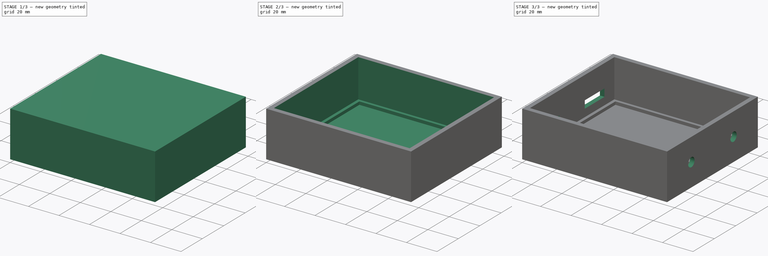
[diagram: build sequence overview — one tinted view per stage of 3, left to right]
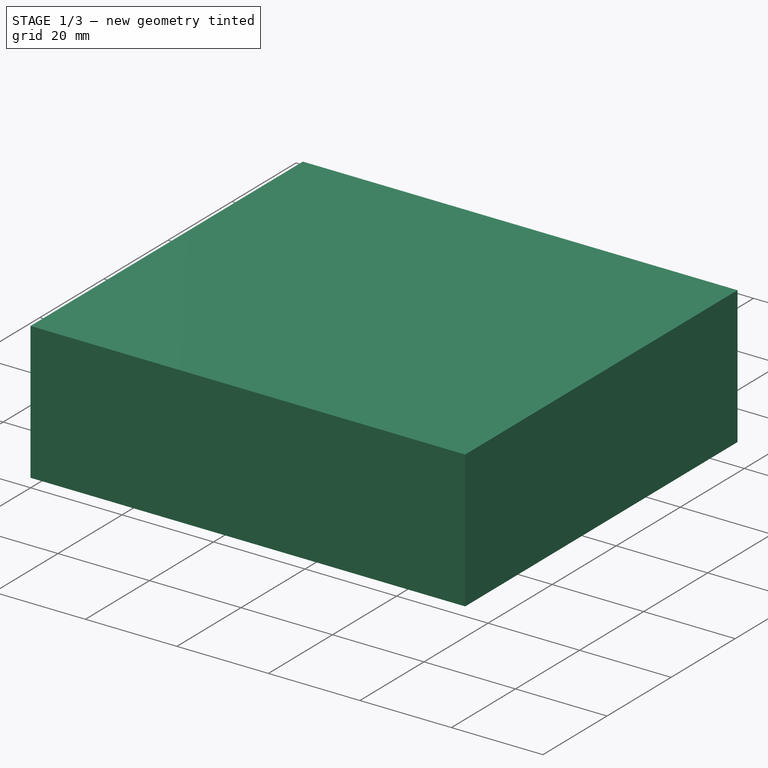
[diagram: stage 1 of 3 — iso view after this stage's code; geometry added in this stage tinted green]
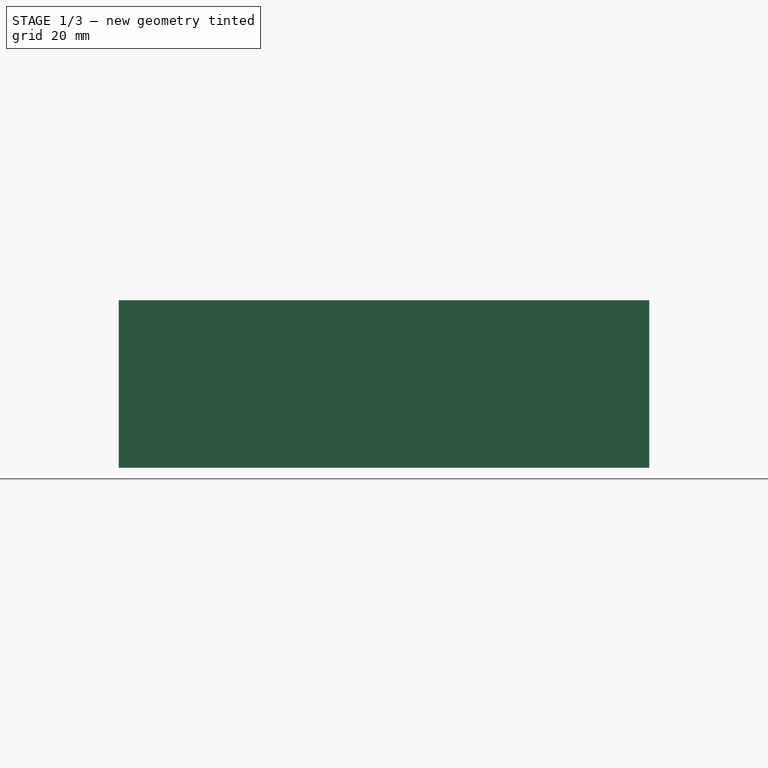
[diagram: stage 1 of 3 — front view after this stage's code; geometry added in this stage tinted green]
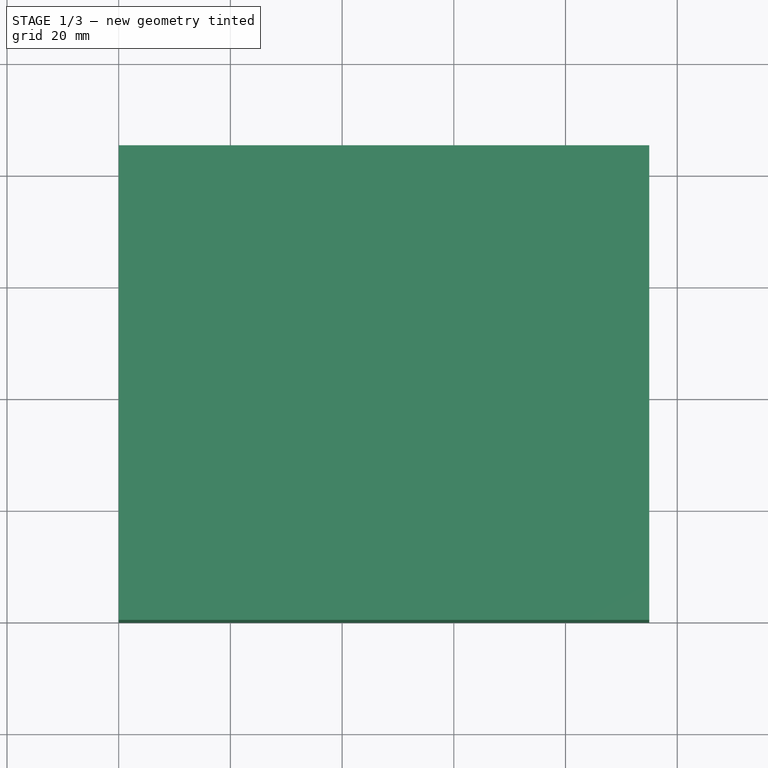
[diagram: stage 1 of 3 — top view after this stage's code; geometry added in this stage tinted green]
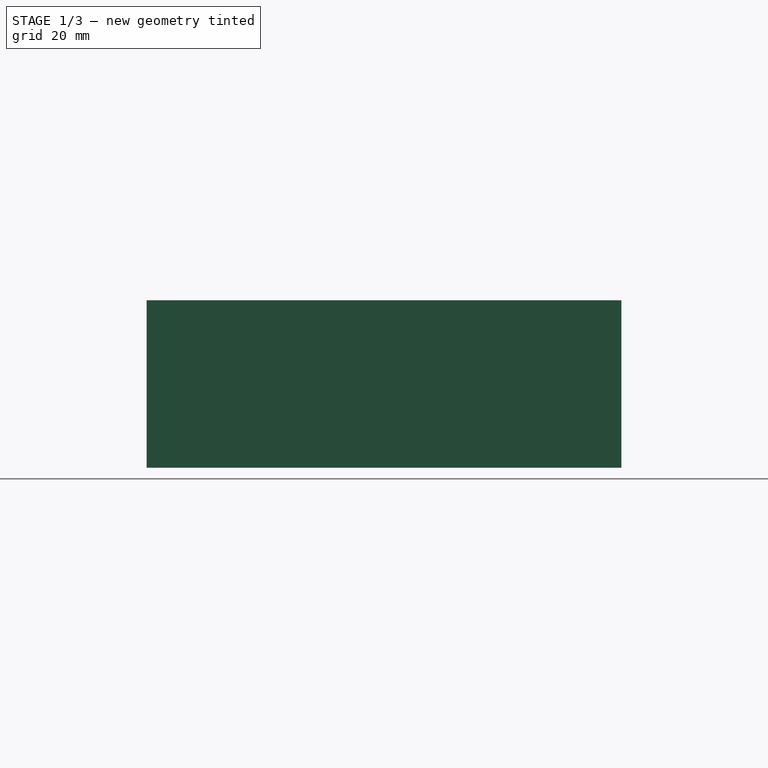
[diagram: stage 1 of 3 — right view after this stage's code; geometry added in this stage tinted green]
FCSTD DOCUMENT  (FreeCAD 0.19R24267 +99 (Git))
Label: boitier encodeurs
License: All rights reserved
LicenseURL: http://en.wikipedia.org/wiki/All_rights_reserved
objects: Sketcher::SketchObject×5, PartDesign::Pocket×3, Part::Extrusion×1, PartDesign::FeatureBase×1, PartDesign::Hole×1, PartDesign::Body×1
note: 16 computed .brp shape members not serialized (recipe doc carries the construction recipe); baked Part::Feature solids carry a one-line shape summary decoded from their .brp

FEATURE [Sketcher::SketchObject] Sketch
  FullyConstrained = true
  sketch-geometry (4):
    g0: LineSegment StartX=0 StartY=0 StartZ=0 EndX=95 EndY=0 EndZ=0
    g1: LineSegment StartX=95 StartY=0 StartZ=0 EndX=95 EndY=85 EndZ=0
    g2: LineSegment StartX=95 StartY=85 StartZ=0 EndX=0 EndY=85 EndZ=0
    g3: LineSegment StartX=0 StartY=85 StartZ=0 EndX=0 EndY=0 EndZ=0
  constraints (11):
    c: Coincident(g0,g1)
    c: Coincident(g1,g2)
    c: Coincident(g2,g3)
    c: Coincident(g3,g0)
    c: Horizontal(g0)
    c: Horizontal(g2)
    c: Vertical(g1)
    c: Vertical(g3)
    c: Coincident(g0,g-1)
    c: DistanceY(g1,g1) = 85
    c: DistanceX(g0,g0) = 95
FEATURE [Part::Extrusion] Extrude
  Base = -> Sketch
  Dir = (0,0,1)
  DirMode = 2
  FaceMakerClass = Part::FaceMakerBullseye
  LengthFwd = 30
  LengthRev = 0
  Solid = true
  Symmetric = false
FEATURE [PartDesign::FeatureBase] BaseFeature
  BaseFeature = -> Extrude
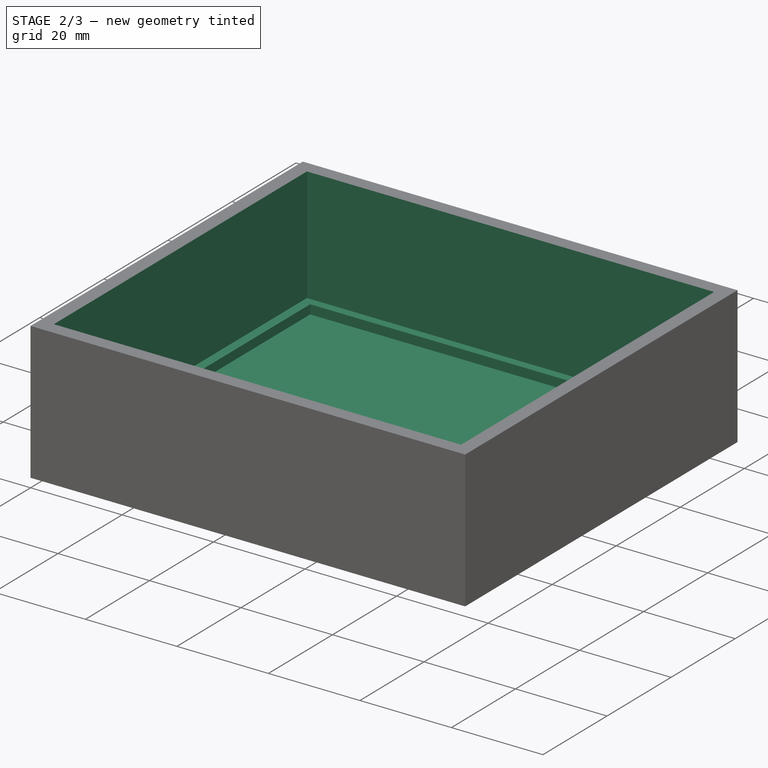
[diagram: stage 2 of 3 — iso view after this stage's code; geometry added in this stage tinted green]
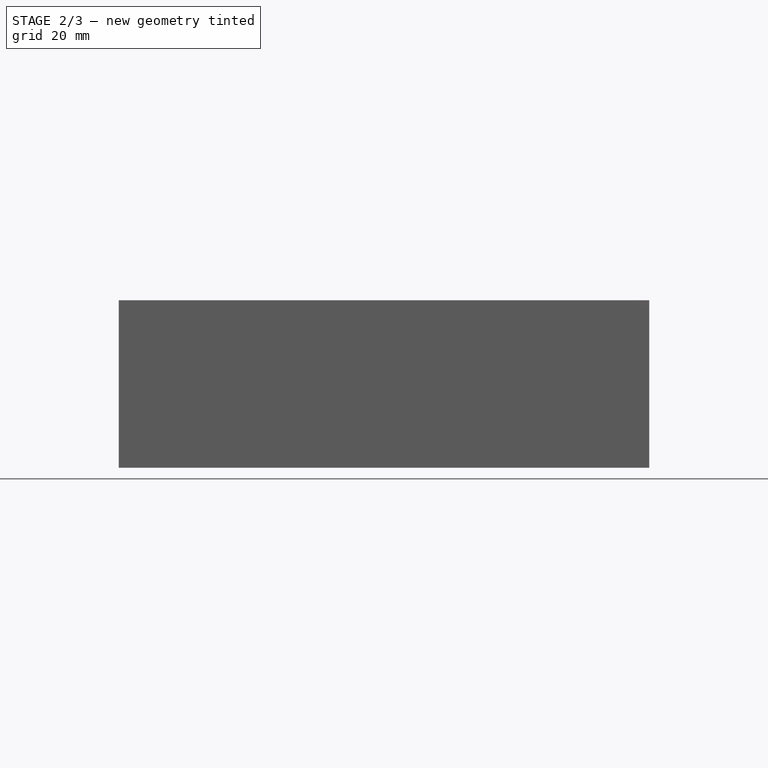
[diagram: stage 2 of 3 — front view after this stage's code; geometry added in this stage tinted green]
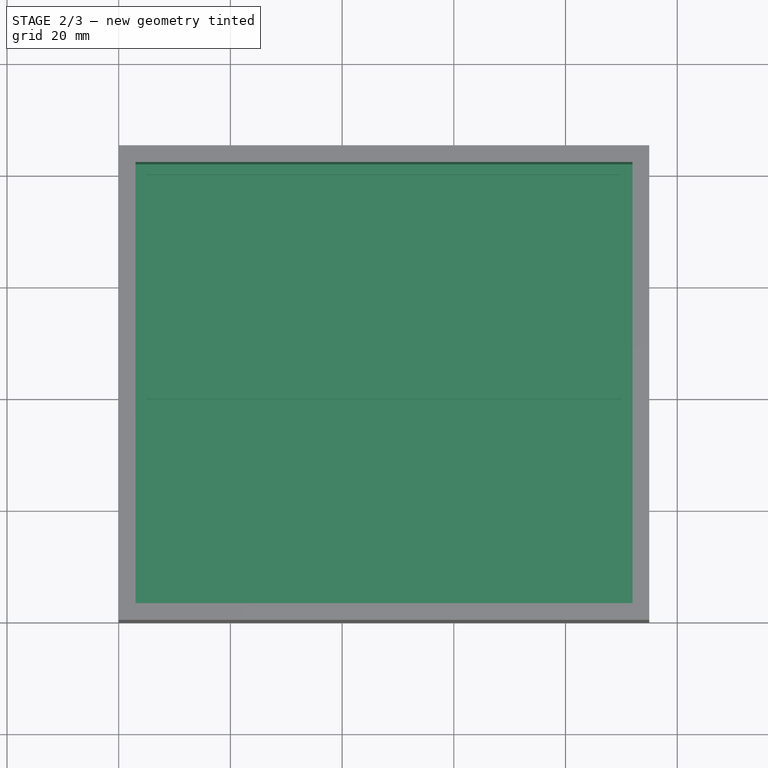
[diagram: stage 2 of 3 — top view after this stage's code; geometry added in this stage tinted green]
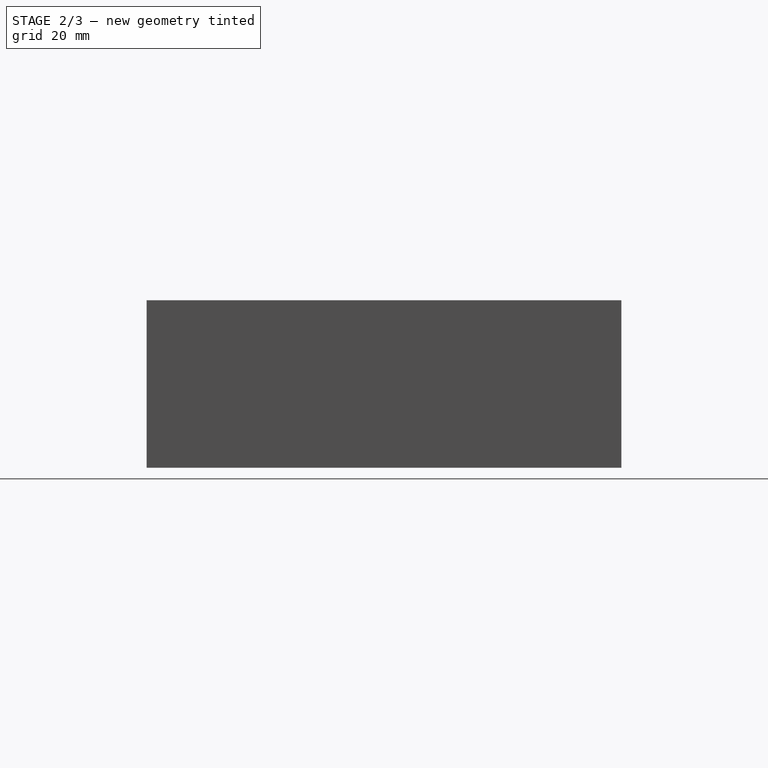
[diagram: stage 2 of 3 — right view after this stage's code; geometry added in this stage tinted green]
FEATURE [Sketcher::SketchObject] Sketch001
  FullyConstrained = false
  MapMode = 5
  Placement = pos=(0,0,30) rot=(0,0,1;0rad)
  Support = -> [BaseFeature]
  sketch-geometry (8):
    g0: LineSegment StartX=5 StartY=80.1449 StartZ=0 EndX=90 EndY=80.1449 EndZ=0
    g1: LineSegment StartX=90 StartY=80.1449 StartZ=0 EndX=90 EndY=45.1449 EndZ=0
    g2: LineSegment StartX=90 StartY=45.1449 StartZ=0 EndX=5 EndY=45.1449 EndZ=0
    g3: LineSegment StartX=5 StartY=45.1449 StartZ=0 EndX=5 EndY=80.1449 EndZ=0
    g4: LineSegment StartX=5 StartY=5 StartZ=0 EndX=90 EndY=5 EndZ=0
    g5: LineSegment StartX=90 StartY=5 StartZ=0 EndX=90 EndY=40 EndZ=0
    g6: LineSegment StartX=90 StartY=40 StartZ=0 EndX=5 EndY=40 EndZ=0
    g7: LineSegment StartX=5 StartY=40 StartZ=0 EndX=5 EndY=5 EndZ=0
  constraints (20):
    c: Coincident(g0,g1)
    c: Coincident(g1,g2)
    c: Coincident(g2,g3)
    c: Coincident(g3,g0)
    c: Horizontal(g0)
    c: Horizontal(g2)
    c: Vertical(g1)
    c: Vertical(g3)
    c: Coincident(g4,g5)
    c: Coincident(g5,g6)
    c: Coincident(g6,g7)
    c: Coincident(g7,g4)
    c: Horizontal(g4)
    c: Horizontal(g6)
    c: Vertical(g5)
    c: Vertical(g7)
    c: DistanceY(g1,g1) = 35
    c: DistanceY(g5,g5) = 35
    c: DistanceX(g2,g2) = 85
    c: DistanceX(g4,g4) = 85
FEATURE [Sketcher::SketchObject] Sketch002
  FullyConstrained = true
  MapMode = 5
  Placement = pos=(0,0,30) rot=(0,0,1;0rad)
  Support = -> [BaseFeature]
  sketch-geometry (12):
    g0: LineSegment StartX=0 StartY=0 StartZ=0 EndX=95 EndY=0 EndZ=0
    g1: LineSegment StartX=95 StartY=0 StartZ=0 EndX=95 EndY=85 EndZ=0
    g2: LineSegment StartX=95 StartY=85 StartZ=0 EndX=0 EndY=85 EndZ=0
    g3: LineSegment StartX=0 StartY=85 StartZ=0 EndX=0 EndY=0 EndZ=0
    g4: LineSegment StartX=3 StartY=82 StartZ=0 EndX=92 EndY=82 EndZ=0
    g5: LineSegment StartX=92 StartY=82 StartZ=0 EndX=92 EndY=3 EndZ=0
    g6: LineSegment StartX=92 StartY=3 StartZ=0 EndX=3 EndY=3 EndZ=0
    g7: LineSegment StartX=3 StartY=3 StartZ=0 EndX=3 EndY=82 EndZ=0
    g8: LineSegment StartX=0 StartY=0 StartZ=0 EndX=3 EndY=0 EndZ=0
    g9: LineSegment StartX=3 StartY=0 StartZ=0 EndX=3 EndY=3 EndZ=0
    g10: LineSegment StartX=3 StartY=3 StartZ=0 EndX=0 EndY=3 EndZ=0
    g11: LineSegment StartX=0 StartY=3 StartZ=0 EndX=0 EndY=0 EndZ=0
  constraints (33):
    c: Coincident(g0,g1)
    c: Coincident(g1,g2)
    c: Coincident(g2,g3)
    c: Coincident(g3,g0)
    c: Horizontal(g0)
    c: Horizontal(g2)
    c: Vertical(g1)
    c: Vertical(g3)
    c: Coincident(g0,g-1)
    c: DistanceY(g1,g1) = 85
    c: DistanceX(g2,g2) = 95
    c: Coincident(g4,g5)
    c: Coincident(g5,g6)
    c: Coincident(g6,g7)
    c: Coincident(g7,g4)
    c: Horizontal(g4)
    c: Horizontal(g6)
    c: Vertical(g5)
    c: Vertical(g7)
    c: DistanceX(g4,g4) = 89
    c: DistanceY(g5,g5) = 79
    c: Coincident(g8,g9)
    c: Coincident(g9,g10)
    c: Coincident(g10,g11)
    c: Coincident(g11,g8)
    c: Horizontal(g8)
    c: Horizontal(g10)
    c: Vertical(g9)
    c: Vertical(g11)
    c: Coincident(g8,g0)
    c: Coincident(g9,g6)
    c: DistanceX(g10,g10) = 3
    c: DistanceY(g9,g9) = 3
FEATURE [PartDesign::Pocket] Pocket
  BaseFeature = -> BaseFeature
  Length = 25
  Length2 = 100
  Profile = -> Sketch002
  Type = 0
FEATURE [PartDesign::Pocket] Pocket001
  BaseFeature = -> Pocket
  Length = 27
  Length2 = 100
  Profile = -> Sketch001
  Type = 0
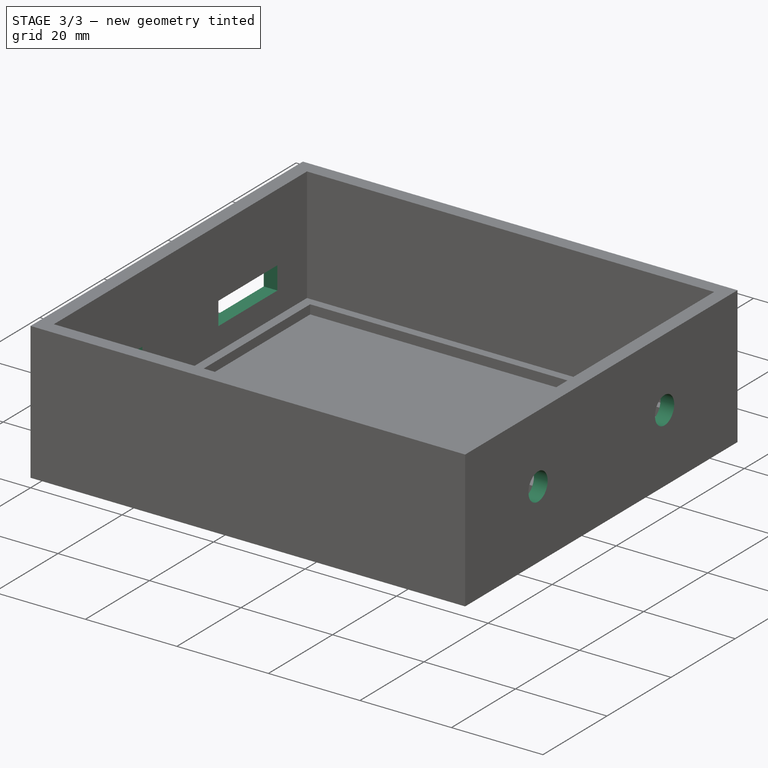
[diagram: stage 3 of 3 — iso view after this stage's code; geometry added in this stage tinted green]
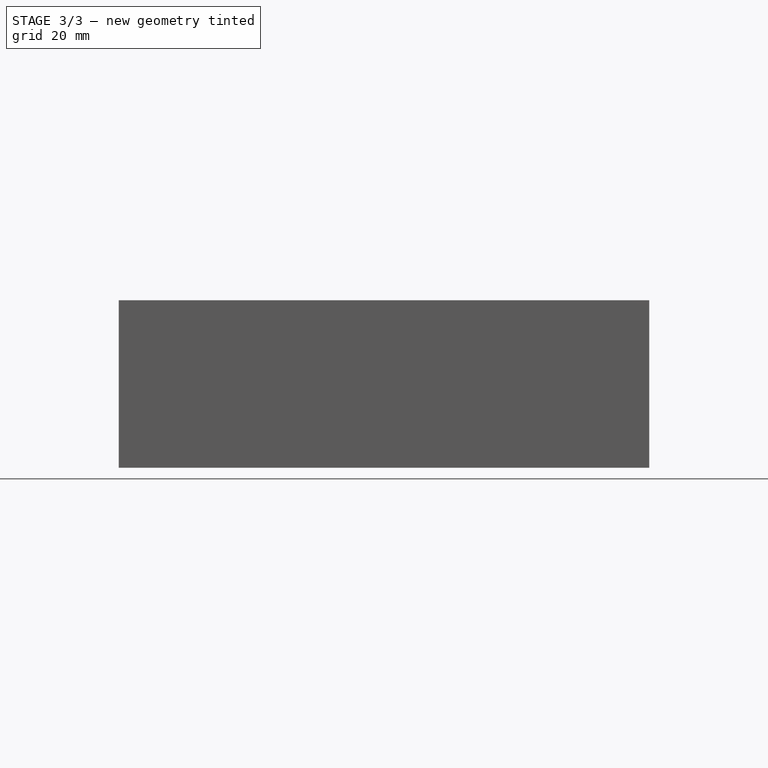
[diagram: stage 3 of 3 — front view after this stage's code; geometry added in this stage tinted green]
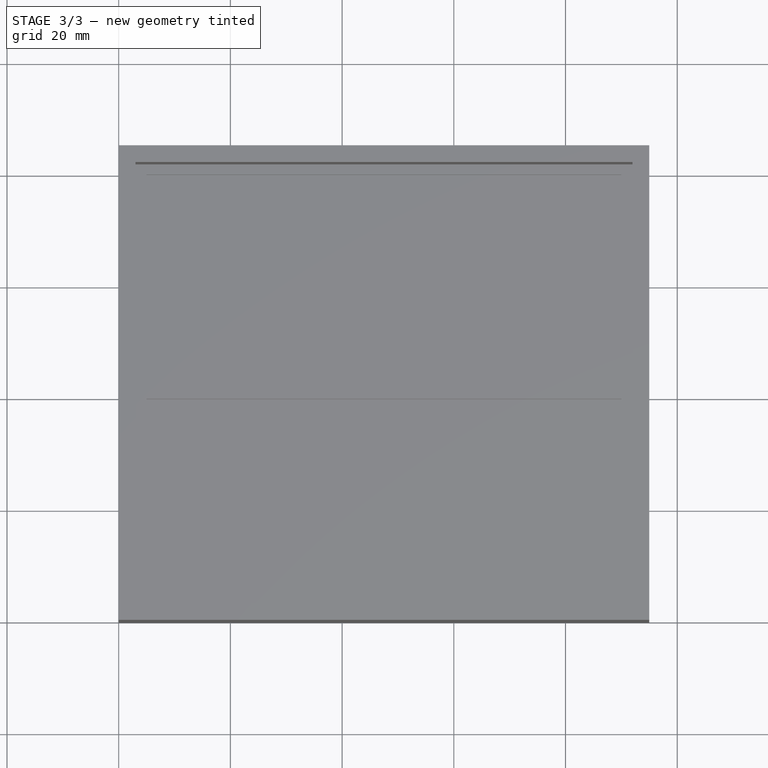
[diagram: stage 3 of 3 — top view after this stage's code; geometry added in this stage tinted green]
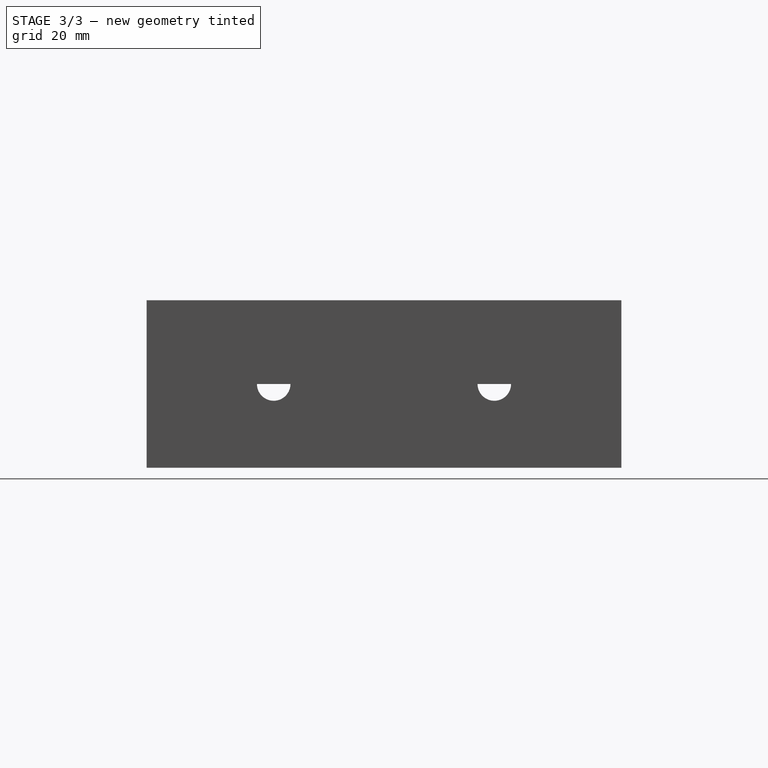
[diagram: stage 3 of 3 — right view after this stage's code; geometry added in this stage tinted green]
FEATURE [Sketcher::SketchObject] Sketch003
  FullyConstrained = true
  MapMode = 5
  Placement = pos=(95,0,0) rot=(0.57735,0.57735,0.57735;2.0944rad)
  Support = -> [Pocket001]
  sketch-geometry (9):
    g0: LineSegment StartX=0 StartY=0 StartZ=0 EndX=3 EndY=0 EndZ=0
    g1: LineSegment StartX=3 StartY=0 StartZ=0 EndX=22.75 EndY=0 EndZ=0
    g2: LineSegment StartX=0 StartY=0 StartZ=0 EndX=85 EndY=0 EndZ=0
    g3: LineSegment StartX=85 StartY=0 StartZ=0 EndX=82 EndY=0 EndZ=0
    g4: LineSegment StartX=82 StartY=0 StartZ=0 EndX=62.25 EndY=0 EndZ=0
    g5: LineSegment StartX=22.75 StartY=0 StartZ=0 EndX=22.75 EndY=15 EndZ=0
    g6: LineSegment StartX=62.25 StartY=0 StartZ=0 EndX=62.25 EndY=15 EndZ=0
    g7: Circle CenterX=22.75 CenterY=15 CenterZ=0 NormalX=0 NormalY=0 NormalZ=1 AngleXU=0 Radius=2
    g8: Circle CenterX=62.25 CenterY=15 CenterZ=0 NormalX=0 NormalY=0 NormalZ=1 AngleXU=0 Radius=2
  constraints (25):
    c: Coincident(g0,g-1)
    c: PointOnObject(g0,g-1)
    c: DistanceX(g0,g0) = 3
    c: Coincident(g1,g0)
    c: PointOnObject(g1,g-1)
    c: DistanceX(g1,g1) = 19.75
    c: Coincident(g2,g0)
    c: PointOnObject(g2,g-1)
    c: DistanceX(g2,g2) = 85
    c: Coincident(g3,g2)
    c: PointOnObject(g3,g2)
    c: DistanceX(g3,g3) = 3
    c: Coincident(g4,g3)
    c: PointOnObject(g4,g2)
    c: DistanceX(g4,g4) = 19.75
    c: Coincident(g5,g1)
    c: Vertical(g5)
    c: DistanceY(g5,g5) = 15
    c: Coincident(g6,g4)
    c: Vertical(g6)
    c: DistanceY(g6,g6) = 15
    c: Coincident(g7,g5)
    c: Radius(g7) = 2
    c: Coincident(g8,g6)
    c: Radius(g8) = 2
FEATURE [PartDesign::Hole] Hole
  BaseFeature = -> Pocket001
  Depth = 25
  DepthType = 0
  Diameter = 6
  DrillForDepth = false
  DrillPoint = 1
  DrillPointAngle = 118
  HoleCutCountersinkAngle = 90
  HoleCutCustomValues = false
  HoleCutDepth = 0
  HoleCutDiameter = 6.1
  HoleCutType = 0
  ModelActualThread = false
  Profile = -> Sketch003
  Tapered = false
  TaperedAngle = 90
  ThreadAngle = 0
  ThreadClass = 0
  ThreadCutOffInner = 0
  ThreadCutOffOuter = 0
  ThreadDirection = 0
  ThreadFit = 0
  ThreadPitch = 0
  ThreadSize = 0
  ThreadType = 0
  Threaded = false
FEATURE [Sketcher::SketchObject] Sketch004
  FullyConstrained = true
  MapMode = 5
  Placement = pos=(0,0,0) rot=(0.57735,-0.57735,-0.57735;2.0944rad)
  Support = -> [Hole]
  sketch-geometry (15):
    g0: LineSegment StartX=0 StartY=0 StartZ=0 EndX=-85 EndY=0 EndZ=0
    g1: LineSegment StartX=0 StartY=0 StartZ=0 EndX=-3 EndY=0 EndZ=0
    g2: LineSegment StartX=-85 StartY=0 StartZ=0 EndX=-82 EndY=0 EndZ=0
    g3: LineSegment StartX=-3 StartY=0 StartZ=0 EndX=-12.21 EndY=0 EndZ=0
    g4: LineSegment StartX=-82 StartY=0 StartZ=0 EndX=-72.785 EndY=0 EndZ=0
    g5: LineSegment StartX=-72.785 StartY=0 StartZ=0 EndX=-72.785 EndY=10 EndZ=0
    g6: LineSegment StartX=-12.21 StartY=0 StartZ=0 EndX=-12.21 EndY=10 EndZ=0
    g7: LineSegment StartX=-72.785 StartY=10 StartZ=0 EndX=-54.355 EndY=10 EndZ=0
    g8: LineSegment StartX=-54.355 StartY=10 StartZ=0 EndX=-54.355 EndY=15 EndZ=0
    g9: LineSegment StartX=-54.355 StartY=15 StartZ=0 EndX=-72.785 EndY=15 EndZ=0
    g10: LineSegment StartX=-72.785 StartY=15 StartZ=0 EndX=-72.785 EndY=10 EndZ=0
    g11: LineSegment StartX=-12.21 StartY=10 StartZ=0 EndX=-30.64 EndY=10 EndZ=0
    g12: LineSegment StartX=-30.64 StartY=10 StartZ=0 EndX=-30.64 EndY=15 EndZ=0
    g13: LineSegment StartX=-30.64 StartY=15 StartZ=0 EndX=-12.21 EndY=15 EndZ=0
    g14: LineSegment StartX=-12.21 StartY=15 StartZ=0 EndX=-12.21 EndY=10 EndZ=0
  constraints (43):
    c: Coincident(g0,g-1)
    c: PointOnObject(g0,g-1)
    c: Coincident(g1,g0)
    c: PointOnObject(g1,g0)
    c: Coincident(g2,g0)
    c: PointOnObject(g2,g0)
    c: DistanceX(g0,g0) = 85
    c: DistanceX(g2,g2) = 3
    c: DistanceX(g1,g1) = 3
    c: Coincident(g3,g1)
    c: PointOnObject(g3,g0)
    c: Coincident(g4,g2)
    c: PointOnObject(g4,g0)
    c: DistanceX(g4,g4) = 9.215
    c: DistanceX(g3,g3) = 9.21
    c: Coincident(g5,g4)
    c: Vertical(g5)
    c: Coincident(g6,g3)
    c: Vertical(g6)
    c: DistanceY(g6,g6) = 10
    c: DistanceY(g5,g5) = 10
    c: Coincident(g7,g8)
    c: Coincident(g8,g9)
    c: Coincident(g9,g10)
    c: Coincident(g10,g7)
    c: Horizontal(g7)
    c: Horizontal(g9)
    c: Vertical(g8)
    c: Vertical(g10)
    c: Coincident(g7,g5)
    c: Coincident(g11,g12)
    c: Coincident(g12,g13)
    c: Coincident(g13,g14)
    c: Coincident(g14,g11)
    c: Horizontal(g11)
    c: Horizontal(g13)
    c: Vertical(g12)
    c: Vertical(g14)
    c: Coincident(g11,g6)
    c: DistanceY(g8,g8) = 5
    c: DistanceY(g14,g14) = 5
    c: DistanceX(g11,g11) = 18.43
    c: DistanceX(g9,g9) = 18.43
FEATURE [PartDesign::Pocket] Pocket002
  BaseFeature = -> Hole
  Length = 3
  Length2 = 100
  Profile = -> Sketch004
  Type = 0
FEATURE [PartDesign::Body] Body
  BaseFeature = -> Extrude
  Group = -> [BaseFeature,Sketch001,Sketch002,Pocket,Pocket001,Sketch003,Hole,Sketch004,Pocket002]
  Origin = -> Origin
  Tip = -> Pocket002
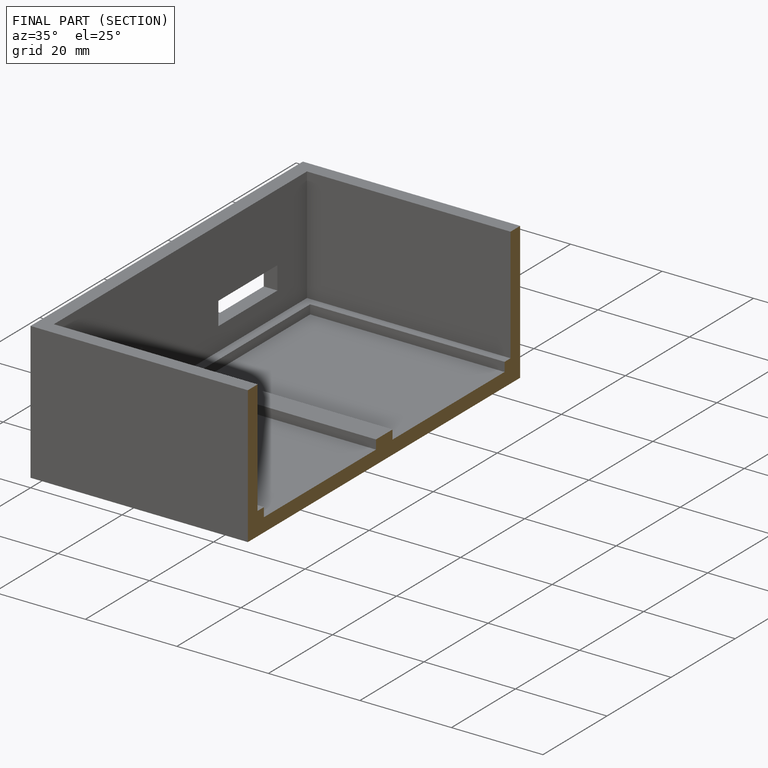
[diagram: finished part — half-section view (interior)]
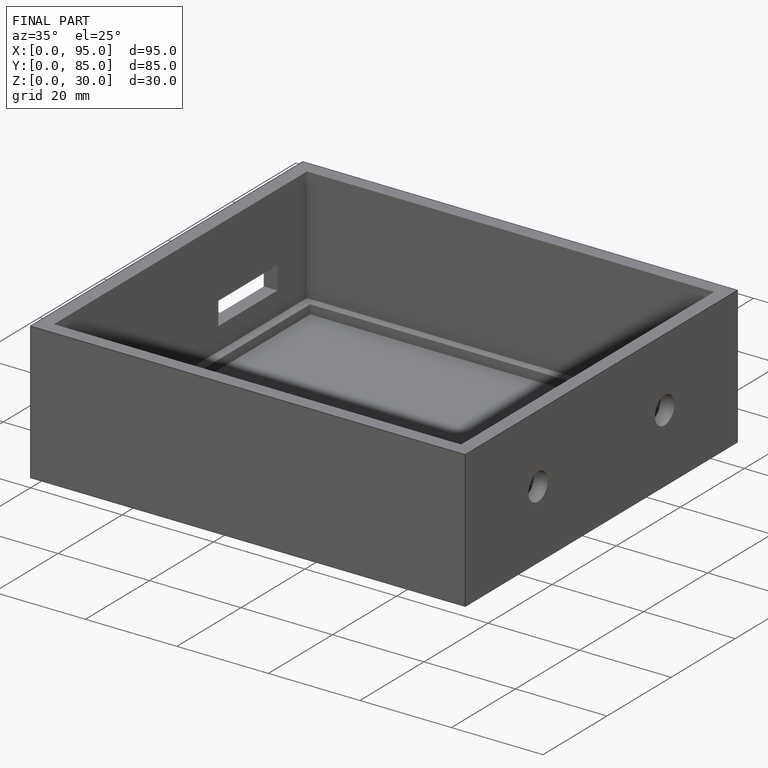
[diagram: finished part — iso view with bounding-box wireframe]
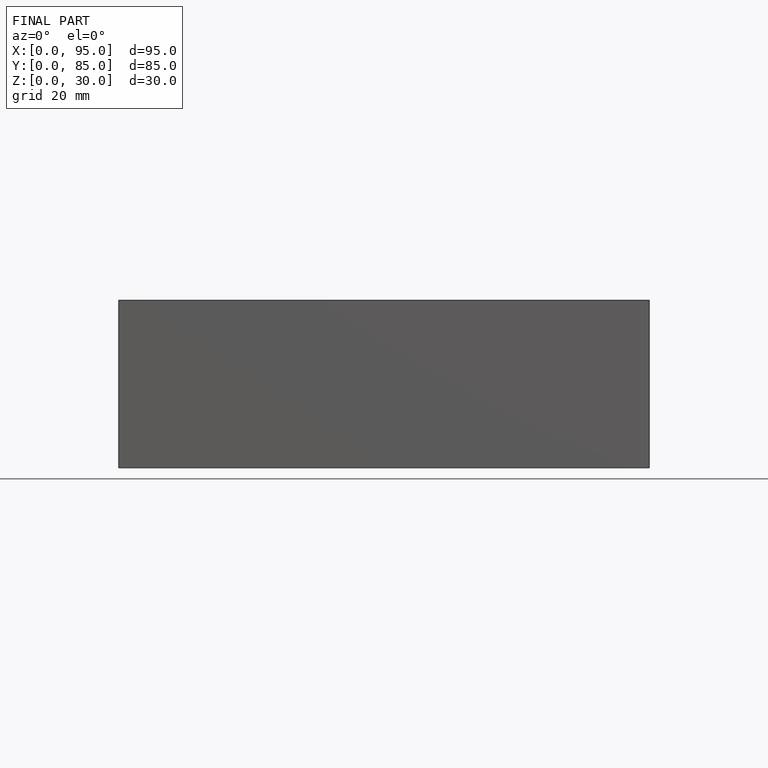
[diagram: finished part — front view with bounding-box wireframe]
